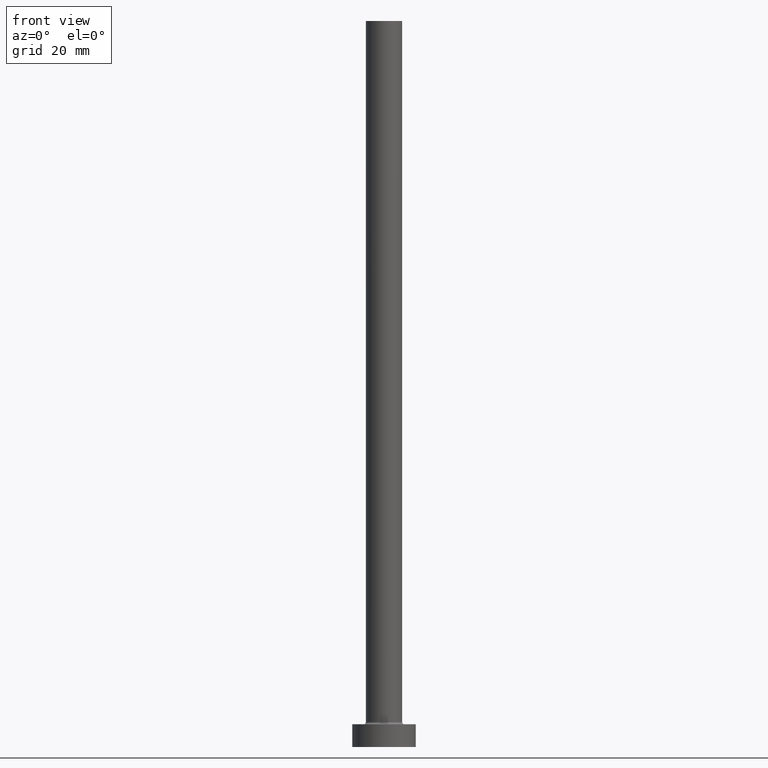
[diagram: clean part render]
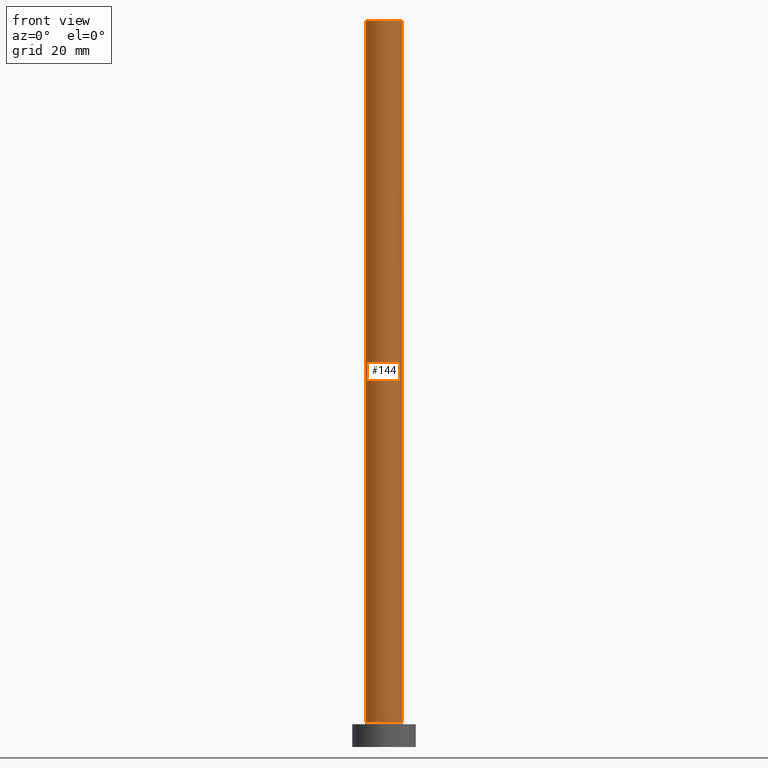
[diagram: same view with one face highlighted and labeled with its STEP entity id]
A machine part, front view. The second image highlights one B-rep face of the part: STEP entity #144.
In plain terms, the highlighted cylindrical surface (edge-blend (fillet) strip) has radius 4 mm, axis along (-0, -0, -1).
Its self-contained STEP definition (entity closure, byte-faithful):
#4 = EDGE_CURVE ( 'NONE', #188, #99, #250, .T. ) ;
#17 = CARTESIAN_POINT ( 'NONE',  ( 0.000000000000000000, 0.000000000000000000, 160.0000000000000000 ) ) ;
#27 = ORIENTED_EDGE ( 'NONE', *, *, #384, .F. ) ;
#54 = LINE ( 'NONE', #375, #77 ) ;
#55 = VERTEX_POINT ( 'NONE', #443 ) ;
#56 = AXIS2_PLACEMENT_3D ( 'NONE', #405, #444, #135 ) ;
#63 = DIRECTION ( 'NONE',  ( -0.000000000000000000, -0.000000000000000000, -1.000000000000000000 ) ) ;
#77 = VECTOR ( 'NONE', #63, 1000.000000000000000 ) ;
#87 = ORIENTED_EDGE ( 'NONE', *, *, #300, .T. ) ;
#88 = AXIS2_PLACEMENT_3D ( 'NONE', #143, #239, #208 ) ;
#99 = VERTEX_POINT ( 'NONE', #168 ) ;
#135 = DIRECTION ( 'NONE',  ( 1.000000000000000000, 0.000000000000000000, 0.000000000000000000 ) ) ;
#143 = CARTESIAN_POINT ( 'NONE',  ( 0.000000000000000000, 0.000000000000000000, 160.0000000000000000 ) ) ;
#144 = ADVANCED_FACE ( 'NONE', ( #389 ), #342, .T. ) ;
#166 = DIRECTION ( 'NONE',  ( 0.000000000000000000, 0.000000000000000000, 1.000000000000000000 ) ) ;
#168 = CARTESIAN_POINT ( 'NONE',  ( 4.000000000000000000, 4.898587196589412829E-16, 160.0000000000000000 ) ) ;
#188 = VERTEX_POINT ( 'NONE', #309 ) ;
#192 = VERTEX_POINT ( 'NONE', #451 ) ;
#197 = VECTOR ( 'NONE', #431, 1000.000000000000000 ) ;
#208 = DIRECTION ( 'NONE',  ( -1.000000000000000000, 0.000000000000000000, 0.000000000000000000 ) ) ;
#218 = LINE ( 'NONE', #357, #197 ) ;
#239 = DIRECTION ( 'NONE',  ( -0.000000000000000000, -0.000000000000000000, -1.000000000000000000 ) ) ;
#250 = CIRCLE ( 'NONE', #414, 4.000000000000000000 ) ;
#256 = ORIENTED_EDGE ( 'NONE', *, *, #4, .F. ) ;
#279 = CIRCLE ( 'NONE', #56, 4.000000000000000000 ) ;
#300 = EDGE_CURVE ( 'NONE', #188, #55, #218, .T. ) ;
#309 = CARTESIAN_POINT ( 'NONE',  ( -4.000000000000000000, 0.000000000000000000, 160.0000000000000000 ) ) ;
#336 = DIRECTION ( 'NONE',  ( 1.000000000000000000, 0.000000000000000000, 0.000000000000000000 ) ) ;
#342 = CYLINDRICAL_SURFACE ( 'NONE', #88, 4.000000000000000000 ) ;
#357 = CARTESIAN_POINT ( 'NONE',  ( -4.000000000000000000, 0.000000000000000000, 160.0000000000000000 ) ) ;
#368 = EDGE_LOOP ( 'NONE', ( #27, #256, #87, #436 ) ) ;
#375 = CARTESIAN_POINT ( 'NONE',  ( 4.000000000000000000, 4.898587196589412829E-16, 160.0000000000000000 ) ) ;
#384 = EDGE_CURVE ( 'NONE', #99, #192, #54, .T. ) ;
#389 = FACE_OUTER_BOUND ( 'NONE', #368, .T. ) ;
#405 = CARTESIAN_POINT ( 'NONE',  ( 0.000000000000000000, 0.000000000000000000, 5.500000000000005329 ) ) ;
#414 = AXIS2_PLACEMENT_3D ( 'NONE', #17, #166, #336 ) ;
#431 = DIRECTION ( 'NONE',  ( -0.000000000000000000, -0.000000000000000000, -1.000000000000000000 ) ) ;
#436 = ORIENTED_EDGE ( 'NONE', *, *, #459, .T. ) ;
#443 = CARTESIAN_POINT ( 'NONE',  ( -4.000000000000000000, 0.000000000000000000, 5.500000000000005329 ) ) ;
#444 = DIRECTION ( 'NONE',  ( 0.000000000000000000, 0.000000000000000000, 1.000000000000000000 ) ) ;
#451 = CARTESIAN_POINT ( 'NONE',  ( 4.000000000000000000, 4.898587196589412829E-16, 5.500000000000005329 ) ) ;
#459 = EDGE_CURVE ( 'NONE', #55, #192, #279, .T. ) ;